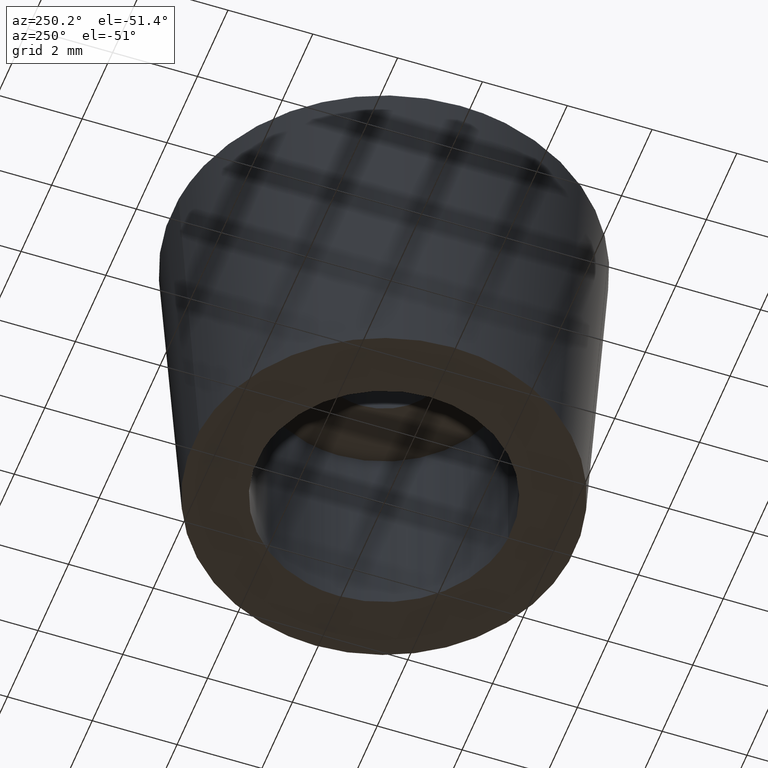
[diagram: clean part render]
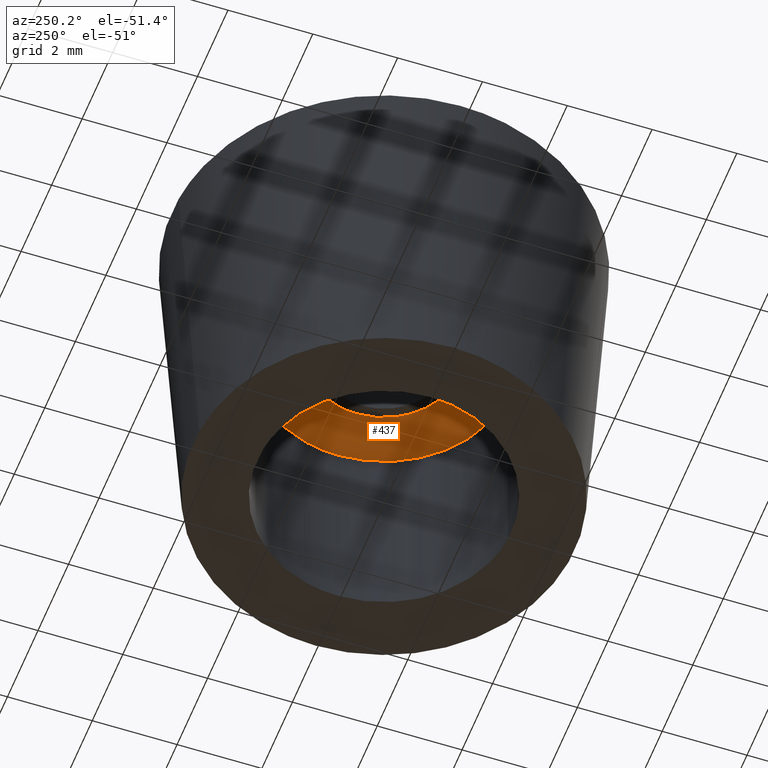
[diagram: same view with one face highlighted and labeled with its STEP entity id]
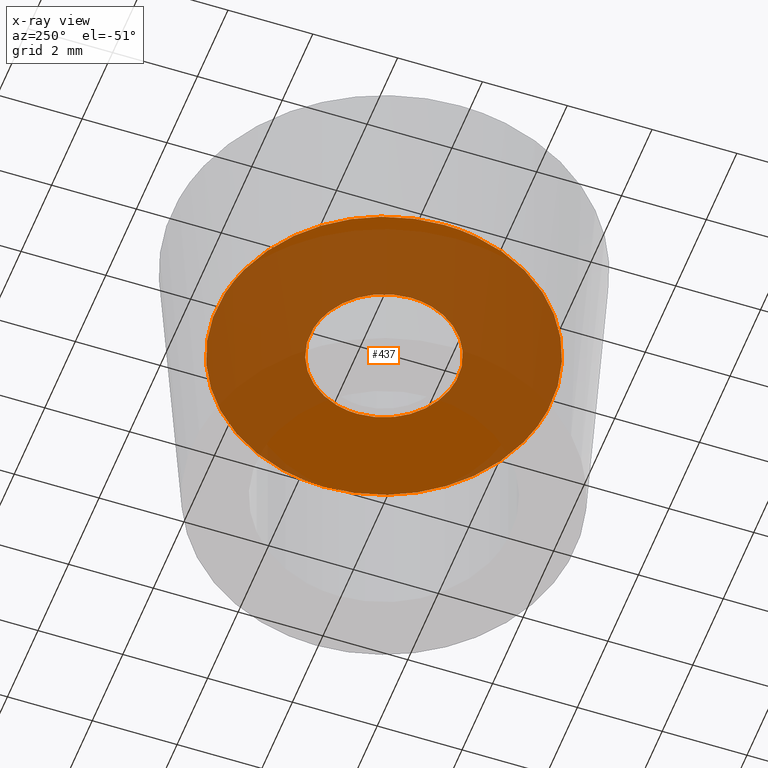
[diagram: x-ray of the same camera — body ghosted, the highlighted face saturated]
A machine part, auxiliary view. The second image highlights one B-rep face of the part: STEP entity #437.
The next image is the same camera in x-ray: the body ghosted, the highlighted face saturated — about 71% of this face is hidden behind the body in this view.
In plain terms, the highlighted face is a freeform B-spline surface patch.
Its self-contained STEP definition (entity closure, byte-faithful):
#66=CARTESIAN_POINT('',(-0.206556954499567,1.737767022514526,4.999999999999911));
#67=VERTEX_POINT('',#66);
#68=CARTESIAN_POINT('',(1.750000000000000,0.0,5.0));
#69=VERTEX_POINT('',#68);
#70=CARTESIAN_POINT('',(-0.206556954499567,1.737767022514526,4.999999999999912));
#71=CARTESIAN_POINT('',(-0.103640715690321,1.750000000000000,5.0));
#72=CARTESIAN_POINT('',(0.0,1.750000000000000,5.0));
#73=CARTESIAN_POINT('',(1.750000000000000,1.750000000000000,4.999999999999999));
#74=CARTESIAN_POINT('',(1.750000000000000,0.0,5.0));
#82=(BOUNDED_CURVE()B_SPLINE_CURVE(2,(#70,#71,#72,#73,#74),.UNSPECIFIED.,.F.,.U.)B_SPLINE_CURVE_WITH_KNOTS((3,2,3),(0.229562761010492,0.250000000000000,0.500000000000000),.UNSPECIFIED.)CURVE()GEOMETRIC_REPRESENTATION_ITEM()RATIONAL_B_SPLINE_CURVE((0.956027317690327,0.976056285154812,1.0,0.707106781186547,1.0))REPRESENTATION_ITEM(''));
#83=EDGE_CURVE('',#67,#69,#82,.T.);
#85=CARTESIAN_POINT('',(0.106834944193444,-1.746735897237812,5.0));
#86=VERTEX_POINT('',#85);
#87=CARTESIAN_POINT('',(1.750000000000000,0.0,5.0));
#88=CARTESIAN_POINT('',(1.750000000000000,-1.646235617070904,5.000000000000001));
#89=CARTESIAN_POINT('',(0.106834944193444,-1.746735897237812,5.0));
#97=(BOUNDED_CURVE()B_SPLINE_CURVE(2,(#87,#88,#89),.UNSPECIFIED.,.F.,.U.)B_SPLINE_CURVE_WITH_KNOTS((3,3),(0.500000000000000,0.739332962240497),.UNSPECIFIED.)CURVE()GEOMETRIC_REPRESENTATION_ITEM()RATIONAL_B_SPLINE_CURVE((1.0,0.719603993284889,0.976072041670049))REPRESENTATION_ITEM(''));
#98=EDGE_CURVE('',#69,#86,#97,.T.);
#169=CARTESIAN_POINT('',(-1.750000000000000,0.0,5.0));
#170=VERTEX_POINT('',#169);
#171=CARTESIAN_POINT('',(-1.750000000000000,0.0,5.0));
#172=CARTESIAN_POINT('',(-1.749999999999999,1.554308083089860,5.000000000000001));
#173=CARTESIAN_POINT('',(-0.206556954499567,1.737767022514526,4.999999999999912));
#181=(BOUNDED_CURVE()B_SPLINE_CURVE(2,(#171,#172,#173),.UNSPECIFIED.,.F.,.U.)B_SPLINE_CURVE_WITH_KNOTS((3,3),(0.0,0.229562761010492),.UNSPECIFIED.)CURVE()GEOMETRIC_REPRESENTATION_ITEM()RATIONAL_B_SPLINE_CURVE((1.0,0.731050496031735,0.956027317690327))REPRESENTATION_ITEM(''));
#182=EDGE_CURVE('',#170,#67,#181,.T.);
#216=CARTESIAN_POINT('',(0.106834944193444,-1.746735897237812,5.0));
#217=CARTESIAN_POINT('',(0.053467335779996,-1.750000000000000,5.0));
#218=CARTESIAN_POINT('',(0.0,-1.750000000000000,5.0));
#219=CARTESIAN_POINT('',(-1.750000000000000,-1.750000000000000,4.999999999999999));
#220=CARTESIAN_POINT('',(-1.750000000000000,0.0,5.0));
#228=(BOUNDED_CURVE()B_SPLINE_CURVE(2,(#216,#217,#218,#219,#220),.UNSPECIFIED.,.F.,.U.)B_SPLINE_CURVE_WITH_KNOTS((3,2,3),(0.739332962240498,0.750000000000000,1.0),.UNSPECIFIED.)CURVE()GEOMETRIC_REPRESENTATION_ITEM()RATIONAL_B_SPLINE_CURVE((0.976072041670050,0.987502787901659,1.0,0.707106781186547,1.0))REPRESENTATION_ITEM(''));
#229=EDGE_CURVE('',#86,#170,#228,.T.);
#256=CARTESIAN_POINT('',(-0.466234703947054,3.922387691296606,5.000000000000005));
#257=VERTEX_POINT('',#256);
#258=CARTESIAN_POINT('',(3.950000000000000,0.0,5.0));
#259=VERTEX_POINT('',#258);
#260=CARTESIAN_POINT('',(-0.466234703947054,3.922387691296607,5.000000000000005));
#261=CARTESIAN_POINT('',(-0.233934744149385,3.950000000000000,5.0));
#262=CARTESIAN_POINT('',(0.0,3.950000000000000,5.0));
#263=CARTESIAN_POINT('',(3.950000000000001,3.950000000000001,4.999999999999999));
#264=CARTESIAN_POINT('',(3.950000000000000,0.0,5.0));
#272=(BOUNDED_CURVE()B_SPLINE_CURVE(2,(#260,#261,#262,#263,#264),.UNSPECIFIED.,.F.,.U.)B_SPLINE_CURVE_WITH_KNOTS((3,2,3),(0.229562518579915,0.250000000000000,0.500000000000000),.UNSPECIFIED.)CURVE()GEOMETRIC_REPRESENTATION_ITEM()RATIONAL_B_SPLINE_CURVE((0.956026842515720,0.976056001129725,1.0,0.707106781186547,1.0))REPRESENTATION_ITEM(''));
#273=EDGE_CURVE('',#257,#259,#272,.T.);
#314=CARTESIAN_POINT('',(0.241140870055862,-3.942632506433735,4.999999999999990));
#315=VERTEX_POINT('',#314);
#321=CARTESIAN_POINT('',(3.950000000000000,0.0,5.0));
#322=CARTESIAN_POINT('',(3.950000000000001,-3.715790590435213,5.0));
#323=CARTESIAN_POINT('',(0.241140870055862,-3.942632506433736,4.999999999999990));
#331=(BOUNDED_CURVE()B_SPLINE_CURVE(2,(#321,#322,#323),.UNSPECIFIED.,.F.,.U.)B_SPLINE_CURVE_WITH_KNOTS((3,3),(0.500000000000000,0.739333037613554),.UNSPECIFIED.)CURVE()GEOMETRIC_REPRESENTATION_ITEM()RATIONAL_B_SPLINE_CURVE((1.0,0.719603904979860,0.976072203208910))REPRESENTATION_ITEM(''));
#332=EDGE_CURVE('',#259,#315,#331,.T.);
#355=CARTESIAN_POINT('',(-3.950000000000000,0.0,5.0));
#356=VERTEX_POINT('',#355);
#357=CARTESIAN_POINT('',(-3.950000000000000,0.0,5.0));
#358=CARTESIAN_POINT('',(-3.950000000000001,3.508290319569535,5.0));
#359=CARTESIAN_POINT('',(-0.466234703947054,3.922387691296607,5.000000000000005));
#367=(BOUNDED_CURVE()B_SPLINE_CURVE(2,(#357,#358,#359),.UNSPECIFIED.,.F.,.U.)B_SPLINE_CURVE_WITH_KNOTS((3,3),(0.0,0.229562518579915),.UNSPECIFIED.)CURVE()GEOMETRIC_REPRESENTATION_ITEM()RATIONAL_B_SPLINE_CURVE((1.0,0.731050780056823,0.956026842515720))REPRESENTATION_ITEM(''));
#368=EDGE_CURVE('',#356,#257,#367,.T.);
#370=CARTESIAN_POINT('',(0.241140870055862,-3.942632506433736,4.999999999999990));
#371=CARTESIAN_POINT('',(0.120682551508161,-3.950000000000001,5.000000000000001));
#372=CARTESIAN_POINT('',(0.0,-3.950000000000000,5.0));
#373=CARTESIAN_POINT('',(-3.950000000000001,-3.950000000000001,4.999999999999999));
#374=CARTESIAN_POINT('',(-3.950000000000000,0.0,5.0));
#382=(BOUNDED_CURVE()B_SPLINE_CURVE(2,(#370,#371,#372,#373,#374),.UNSPECIFIED.,.F.,.U.)B_SPLINE_CURVE_WITH_KNOTS((3,2,3),(0.739333037613553,0.750000000000000,1.0),.UNSPECIFIED.)CURVE()GEOMETRIC_REPRESENTATION_ITEM()RATIONAL_B_SPLINE_CURVE((0.976072203208909,0.987502876206686,1.0,0.707106781186547,1.0))REPRESENTATION_ITEM(''));
#383=EDGE_CURVE('',#315,#356,#382,.T.);
#420=CARTESIAN_POINT('',(-4.344605058847815,-4.344508993518319,5.0));
#421=CARTESIAN_POINT('',(4.344605200110824,-4.344508993518319,5.0));
#422=CARTESIAN_POINT('',(-4.344605058847815,4.344533149492707,5.0));
#423=CARTESIAN_POINT('',(4.344605200110824,4.344533149492707,5.0));
#424=B_SPLINE_SURFACE_WITH_KNOTS('',1,1,((#420,#422),(#421,#423)),.UNSPECIFIED.,.F.,.F.,.U.,(2,2),(2,2),(0.0,8.689210258958639),(0.0,8.689042143011026),.UNSPECIFIED.);
#425=ORIENTED_EDGE('',*,*,#368,.T.);
#426=ORIENTED_EDGE('',*,*,#273,.T.);
#427=ORIENTED_EDGE('',*,*,#332,.T.);
#428=ORIENTED_EDGE('',*,*,#383,.T.);
#429=EDGE_LOOP('',(#425,#426,#427,#428));
#430=FACE_OUTER_BOUND('',#429,.T.);
#431=ORIENTED_EDGE('',*,*,#98,.F.);
#432=ORIENTED_EDGE('',*,*,#83,.F.);
#433=ORIENTED_EDGE('',*,*,#182,.F.);
#434=ORIENTED_EDGE('',*,*,#229,.F.);
#435=EDGE_LOOP('',(#431,#432,#433,#434));
#436=FACE_BOUND('',#435,.T.);
#437=ADVANCED_FACE('',(#430,#436),#424,.F.);